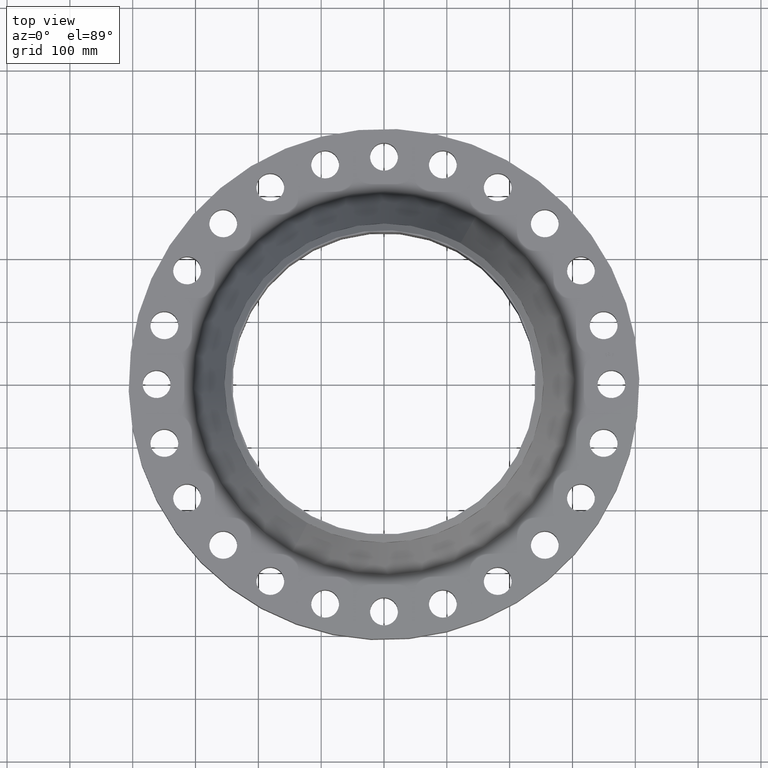
[diagram: clean part render]
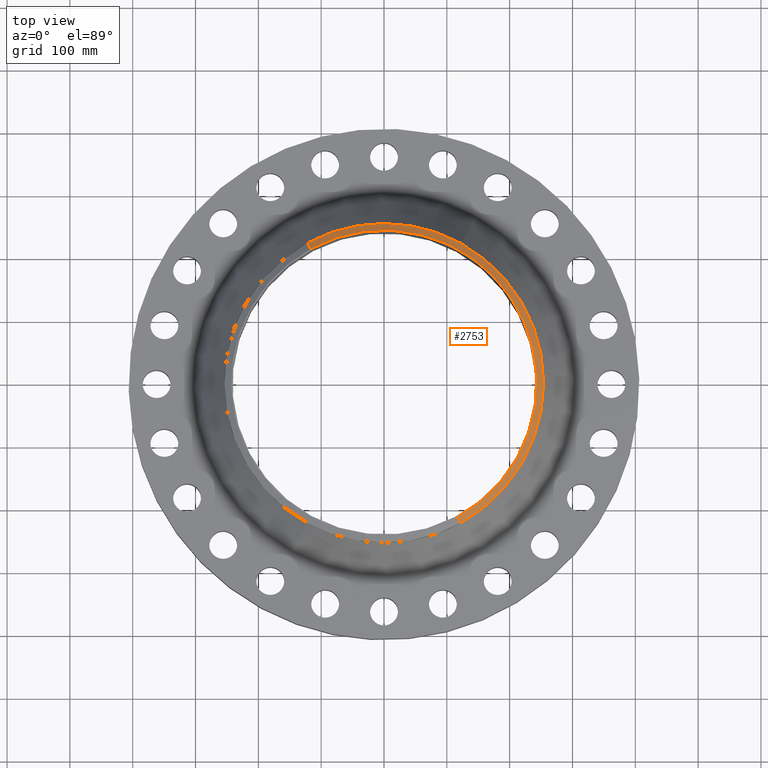
[diagram: same view with one face highlighted and labeled with its STEP entity id]
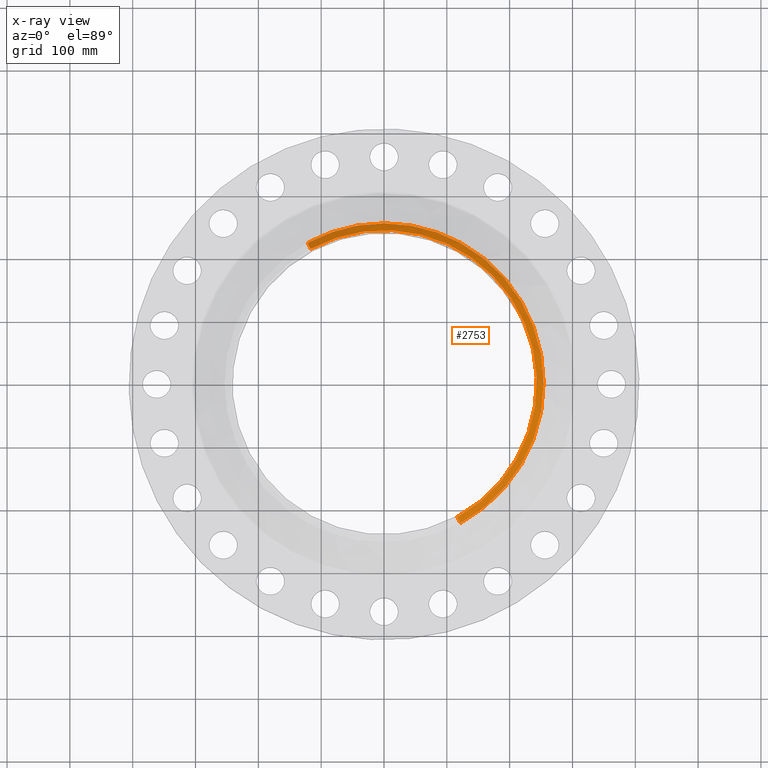
[diagram: x-ray of the same camera — body ghosted, the highlighted face saturated]
A machine part, top view. The second image highlights one B-rep face of the part: STEP entity #2753.
The next image is the same camera in x-ray: the body ghosted, the highlighted face saturated — about 0% of this face is hidden behind the body in this view.
In plain terms, the highlighted conical surface has half-angle 52.5 deg.
Its self-contained STEP definition (entity closure, byte-faithful):
#2446=AXIS2_PLACEMENT_3D('Circle Axis2P3D',#2444,#2445,$) ;
#2718=AXIS2_PLACEMENT_3D('Cone Axis2P3D',#2715,#2716,#2717) ;
#2736=AXIS2_PLACEMENT_3D('Circle Axis2P3D',#2734,#2735,$) ;
#2743=AXIS2_PLACEMENT_3D('Circle Axis2P3D',#2741,#2742,$) ;
#2444=CARTESIAN_POINT('Axis2P3D Location',(-5.59482469102E-016,-1.1189649382E-015,7.50000000003)) ;
#2448=CARTESIAN_POINT('Vertex',(4.59229265917,-8.40613532712,7.50000000003)) ;
#2450=CARTESIAN_POINT('Vertex',(-4.59229265917,8.40613532712,7.50000000003)) ;
#2715=CARTESIAN_POINT('Axis2P3D Location',(0.,0.,7.50000000003)) ;
#2720=CARTESIAN_POINT('Line Origine',(-4.69327402262,8.59098047303,7.33837797697)) ;
#2724=CARTESIAN_POINT('Vertex',(-4.79425538604,8.7758256189,7.17675595391)) ;
#2727=CARTESIAN_POINT('Line Origine',(4.69327402262,-8.59098047303,7.33837797697)) ;
#2731=CARTESIAN_POINT('Vertex',(4.79425538604,-8.7758256189,7.17675595391)) ;
#2734=CARTESIAN_POINT('Axis2P3D Location',(0.,0.,7.17675595393)) ;
#2738=CARTESIAN_POINT('Vertex',(4.79425538605,8.7758256189,7.17675595391)) ;
#2741=CARTESIAN_POINT('Axis2P3D Location',(0.,0.,7.17675595393)) ;
#2445=DIRECTION('Axis2P3D Direction',(0.,0.,-0.0393700787402)) ;
#2716=DIRECTION('Axis2P3D Direction',(-0.,-0.,-0.0393700787402)) ;
#2717=DIRECTION('Axis2P3D XDirection',(-0.0188750212049,0.0345504945626,0.)) ;
#2721=DIRECTION('Vector Direction',(-0.014974561121,0.02741075027,-0.023966985394)) ;
#2728=DIRECTION('Vector Direction',(0.014974561121,-0.02741075027,-0.023966985394)) ;
#2735=DIRECTION('Axis2P3D Direction',(-0.,0.,-0.0393700787402)) ;
#2742=DIRECTION('Axis2P3D Direction',(-0.,0.,-0.0393700787402)) ;
#2722=VECTOR('Line Direction',#2721,0.0393700787402) ;
#2729=VECTOR('Line Direction',#2728,0.0393700787402) ;
#2747=ORIENTED_EDGE('',*,*,#2726,.F.) ;
#2748=ORIENTED_EDGE('',*,*,#2452,.F.) ;
#2749=ORIENTED_EDGE('',*,*,#2733,.T.) ;
#2750=ORIENTED_EDGE('',*,*,#2740,.T.) ;
#2751=ORIENTED_EDGE('',*,*,#2745,.F.) ;
#2753=ADVANCED_FACE('PartBody',(#2752),#2719,.T.) ;
#2447=CIRCLE('generated circle',#2446,9.5787401575) ;
#2737=CIRCLE('generated circle',#2736,10.) ;
#2744=CIRCLE('generated circle',#2743,10.) ;
#2719=CONICAL_SURFACE('Cone',#2718,9.57874015752,0.916297857297) ;
#2452=EDGE_CURVE('',#2449,#2451,#2447,.F.) ;
#2726=EDGE_CURVE('',#2451,#2725,#2723,.T.) ;
#2733=EDGE_CURVE('',#2449,#2732,#2730,.T.) ;
#2740=EDGE_CURVE('',#2732,#2739,#2737,.F.) ;
#2745=EDGE_CURVE('',#2725,#2739,#2744,.T.) ;
#2746=EDGE_LOOP('',(#2747,#2748,#2749,#2750,#2751)) ;
#2752=FACE_OUTER_BOUND('',#2746,.T.) ;
#2723=LINE('Line',#2720,#2722) ;
#2730=LINE('Line',#2727,#2729) ;
#2449=VERTEX_POINT('',#2448) ;
#2451=VERTEX_POINT('',#2450) ;
#2725=VERTEX_POINT('',#2724) ;
#2732=VERTEX_POINT('',#2731) ;
#2739=VERTEX_POINT('',#2738) ;